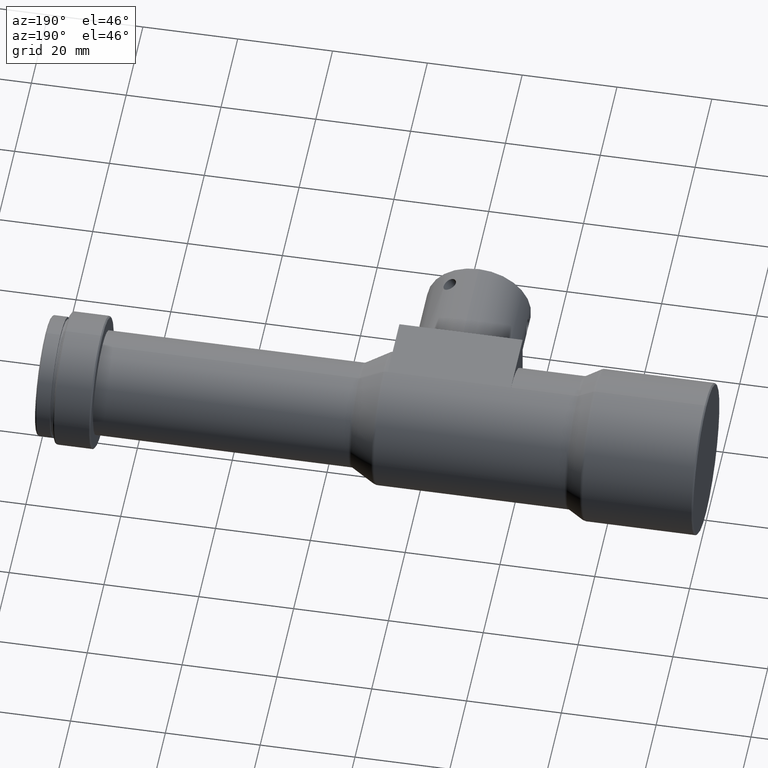
[diagram: clean part render]
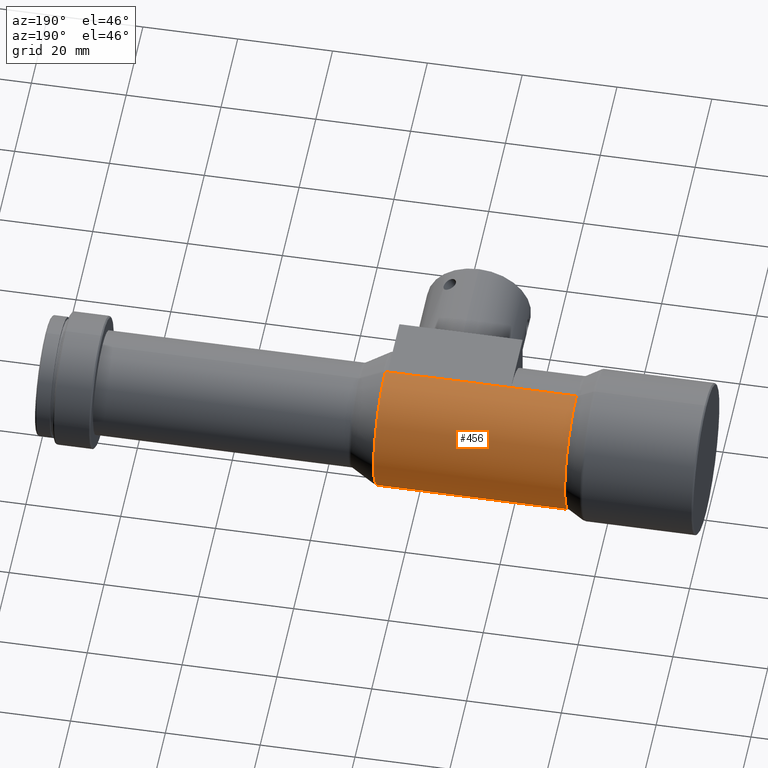
[diagram: same view with one face highlighted and labeled with its STEP entity id]
A machine part, auxiliary view. The second image highlights one B-rep face of the part: STEP entity #456.
In plain terms, the highlighted cylindrical surface (partial cylindrical patch) has radius 14 mm, axis along (-1, -0, -0).
Its self-contained STEP definition (entity closure, byte-faithful):
#5 = VECTOR ( 'NONE', #719, 1000.000000000000000 ) ;
#22 = CARTESIAN_POINT ( 'NONE',  ( 0.0000000000000000000, 0.0000000000000000000, 14.00000000000000000 ) ) ;
#47 = EDGE_CURVE ( 'NONE', #542, #762, #419, .T. ) ;
#48 = DIRECTION ( 'NONE',  ( -1.000000000000000000, -0.0000000000000000000, -0.0000000000000000000 ) ) ;
#89 = EDGE_CURVE ( 'NONE', #202, #1583, #840, .T. ) ;
#120 = CARTESIAN_POINT ( 'NONE',  ( 0.0000000000000000000, 0.0000000000000000000, 14.00000000000000000 ) ) ;
#190 = DIRECTION ( 'NONE',  ( -1.000000000000000000, -0.0000000000000000000, -0.0000000000000000000 ) ) ;
#202 = VERTEX_POINT ( 'NONE', #673 ) ;
#221 = ORIENTED_EDGE ( 'NONE', *, *, #89, .T. ) ;
#248 = DIRECTION ( 'NONE',  ( -1.000000000000000000, -0.0000000000000000000, -0.0000000000000000000 ) ) ;
#291 = ORIENTED_EDGE ( 'NONE', *, *, #1187, .F. ) ;
#316 = VERTEX_POINT ( 'NONE', #850 ) ;
#358 = CARTESIAN_POINT ( 'NONE',  ( 67.70000000000000300, 0.0000000000000000000, 0.0000000000000000000 ) ) ;
#366 = CIRCLE ( 'NONE', #1274, 14.00000000000000000 ) ;
#367 = FACE_OUTER_BOUND ( 'NONE', #1625, .T. ) ;
#419 = LINE ( 'NONE', #22, #564 ) ;
#456 = ADVANCED_FACE ( 'NONE', ( #367 ), #1060, .T. ) ;
#494 = EDGE_CURVE ( 'NONE', #553, #316, #755, .T. ) ;
#525 = CARTESIAN_POINT ( 'NONE',  ( 67.70000000000000300, 1.714505518806294600E-015, -14.00000000000000000 ) ) ;
#542 = VERTEX_POINT ( 'NONE', #1538 ) ;
#553 = VERTEX_POINT ( 'NONE', #943 ) ;
#554 = ORIENTED_EDGE ( 'NONE', *, *, #1110, .F. ) ;
#564 = VECTOR ( 'NONE', #897, 1000.000000000000000 ) ;
#650 = CARTESIAN_POINT ( 'NONE',  ( 41.20000000000001700, 0.0000000000000000000, -14.00000000000000000 ) ) ;
#652 = VECTOR ( 'NONE', #1709, 1000.000000000000000 ) ;
#673 = CARTESIAN_POINT ( 'NONE',  ( 67.70000000000000300, 0.0000000000000000000, 14.00000000000000000 ) ) ;
#715 = VECTOR ( 'NONE', #48, 1000.000000000000000 ) ;
#719 = DIRECTION ( 'NONE',  ( -1.000000000000000000, -0.0000000000000000000, -0.0000000000000000000 ) ) ;
#721 = ORIENTED_EDGE ( 'NONE', *, *, #47, .F. ) ;
#753 = LINE ( 'NONE', #1771, #1599 ) ;
#755 = LINE ( 'NONE', #1699, #715 ) ;
#762 = VERTEX_POINT ( 'NONE', #972 ) ;
#806 = DIRECTION ( 'NONE',  ( 0.0000000000000000000, 0.0000000000000000000, 1.000000000000000000 ) ) ;
#814 = AXIS2_PLACEMENT_3D ( 'NONE', #358, #190, #806 ) ;
#840 = CIRCLE ( 'NONE', #814, 14.00000000000000000 ) ;
#850 = CARTESIAN_POINT ( 'NONE',  ( 27.39999999999999900, 1.714505518806294600E-015, -14.00000000000000000 ) ) ;
#871 = CARTESIAN_POINT ( 'NONE',  ( 67.20000000000000300, 0.0000000000000000000, -14.00000000000000000 ) ) ;
#897 = DIRECTION ( 'NONE',  ( -1.000000000000000000, -0.0000000000000000000, -0.0000000000000000000 ) ) ;
#918 = EDGE_CURVE ( 'NONE', #1349, #542, #753, .T. ) ;
#943 = CARTESIAN_POINT ( 'NONE',  ( 41.20000000000001700, 0.0000000000000000000, -14.00000000000000000 ) ) ;
#961 = VERTEX_POINT ( 'NONE', #871 ) ;
#972 = CARTESIAN_POINT ( 'NONE',  ( 27.39999999999999900, 0.0000000000000000000, 14.00000000000000000 ) ) ;
#1015 = LINE ( 'NONE', #1332, #1324 ) ;
#1027 = ORIENTED_EDGE ( 'NONE', *, *, #918, .F. ) ;
#1032 = DIRECTION ( 'NONE',  ( -1.000000000000000000, -0.0000000000000000000, -0.0000000000000000000 ) ) ;
#1060 = CYLINDRICAL_SURFACE ( 'NONE', #1301, 14.00000000000000000 ) ;
#1110 = EDGE_CURVE ( 'NONE', #202, #1349, #1200, .T. ) ;
#1128 = DIRECTION ( 'NONE',  ( -1.000000000000000000, -0.0000000000000000000, -0.0000000000000000000 ) ) ;
#1187 = EDGE_CURVE ( 'NONE', #762, #316, #366, .T. ) ;
#1200 = LINE ( 'NONE', #120, #5 ) ;
#1274 = AXIS2_PLACEMENT_3D ( 'NONE', #1930, #1032, #1772 ) ;
#1301 = AXIS2_PLACEMENT_3D ( 'NONE', #1639, #1128, #1421 ) ;
#1324 = VECTOR ( 'NONE', #1489, 1000.000000000000000 ) ;
#1332 = CARTESIAN_POINT ( 'NONE',  ( 0.0000000000000000000, 1.714505518806294600E-015, -14.00000000000000000 ) ) ;
#1349 = VERTEX_POINT ( 'NONE', #1535 ) ;
#1421 = DIRECTION ( 'NONE',  ( 0.0000000000000000000, 0.0000000000000000000, 1.000000000000000000 ) ) ;
#1437 = LINE ( 'NONE', #650, #652 ) ;
#1489 = DIRECTION ( 'NONE',  ( -1.000000000000000000, -0.0000000000000000000, -0.0000000000000000000 ) ) ;
#1532 = EDGE_CURVE ( 'NONE', #1583, #961, #1015, .T. ) ;
#1535 = CARTESIAN_POINT ( 'NONE',  ( 67.20000000000000300, 0.0000000000000000000, 14.00000000000000000 ) ) ;
#1538 = CARTESIAN_POINT ( 'NONE',  ( 41.20000000000001700, 0.0000000000000000000, 14.00000000000000000 ) ) ;
#1583 = VERTEX_POINT ( 'NONE', #525 ) ;
#1599 = VECTOR ( 'NONE', #248, 1000.000000000000000 ) ;
#1625 = EDGE_LOOP ( 'NONE', ( #221, #1727, #1805, #1750, #291, #721, #1027, #554 ) ) ;
#1639 = CARTESIAN_POINT ( 'NONE',  ( 0.0000000000000000000, 0.0000000000000000000, 0.0000000000000000000 ) ) ;
#1699 = CARTESIAN_POINT ( 'NONE',  ( 0.0000000000000000000, 1.714505518806294600E-015, -14.00000000000000000 ) ) ;
#1709 = DIRECTION ( 'NONE',  ( -1.000000000000000000, -0.0000000000000000000, -0.0000000000000000000 ) ) ;
#1727 = ORIENTED_EDGE ( 'NONE', *, *, #1532, .T. ) ;
#1750 = ORIENTED_EDGE ( 'NONE', *, *, #494, .T. ) ;
#1771 = CARTESIAN_POINT ( 'NONE',  ( 41.20000000000001700, 0.0000000000000000000, 14.00000000000000000 ) ) ;
#1772 = DIRECTION ( 'NONE',  ( 0.0000000000000000000, 0.0000000000000000000, 1.000000000000000000 ) ) ;
#1805 = ORIENTED_EDGE ( 'NONE', *, *, #1953, .T. ) ;
#1930 = CARTESIAN_POINT ( 'NONE',  ( 27.39999999999999900, 0.0000000000000000000, 0.0000000000000000000 ) ) ;
#1953 = EDGE_CURVE ( 'NONE', #961, #553, #1437, .T. ) ;